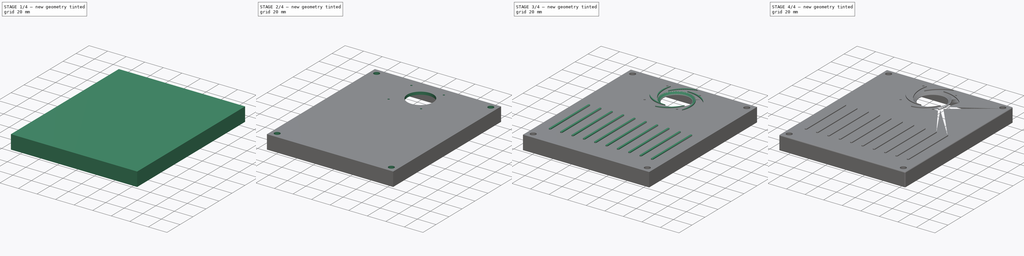
[diagram: build sequence overview — one tinted view per stage of 4, left to right]
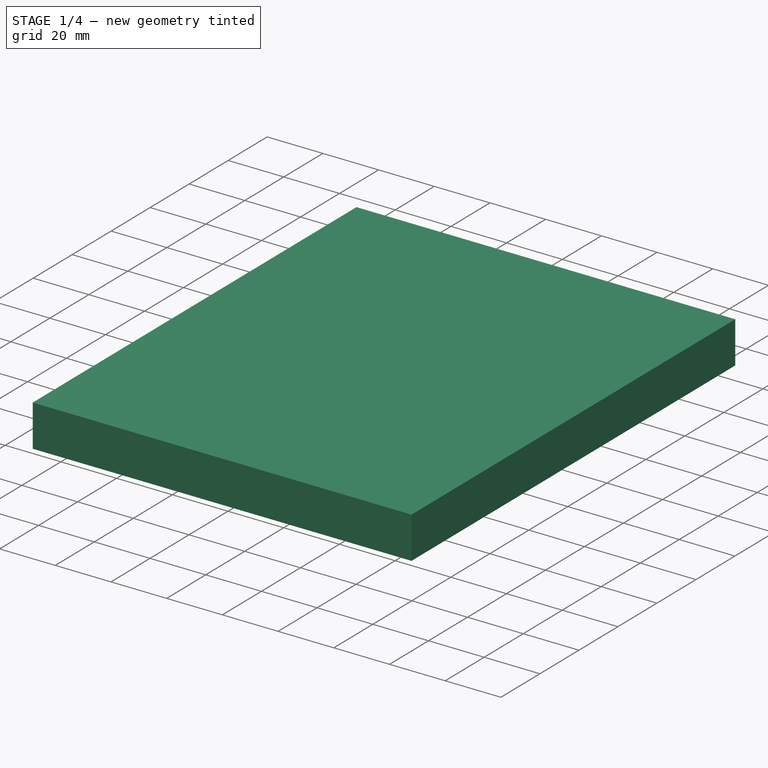
[diagram: stage 1 of 4 — iso view after this stage's code; geometry added in this stage tinted green]
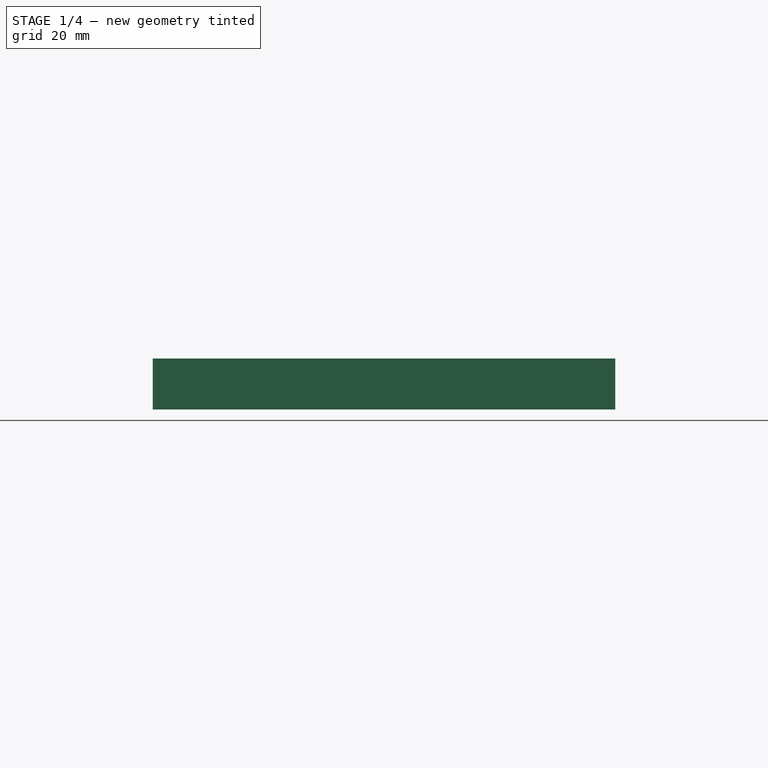
[diagram: stage 1 of 4 — front view after this stage's code; geometry added in this stage tinted green]
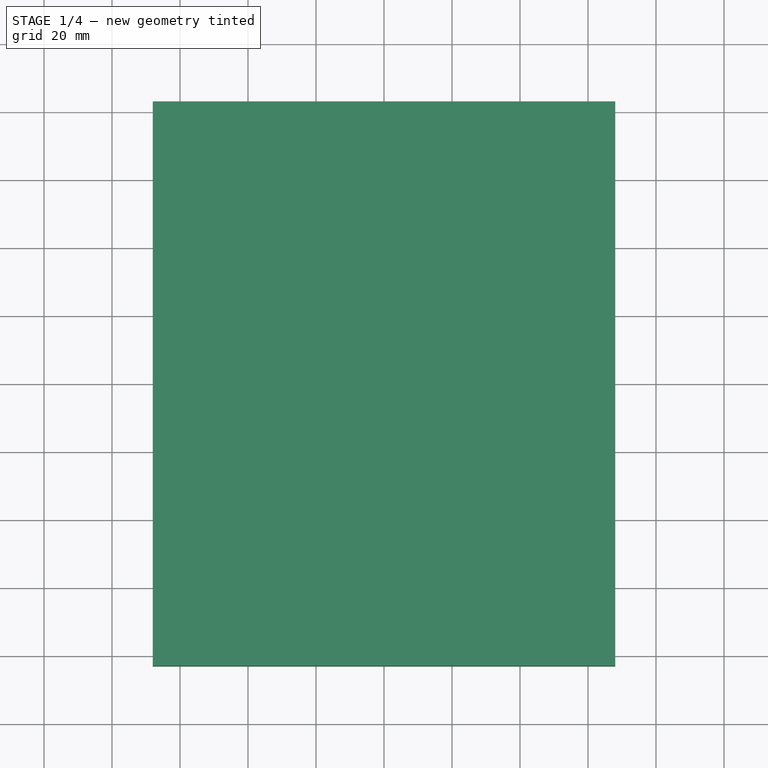
[diagram: stage 1 of 4 — top view after this stage's code; geometry added in this stage tinted green]
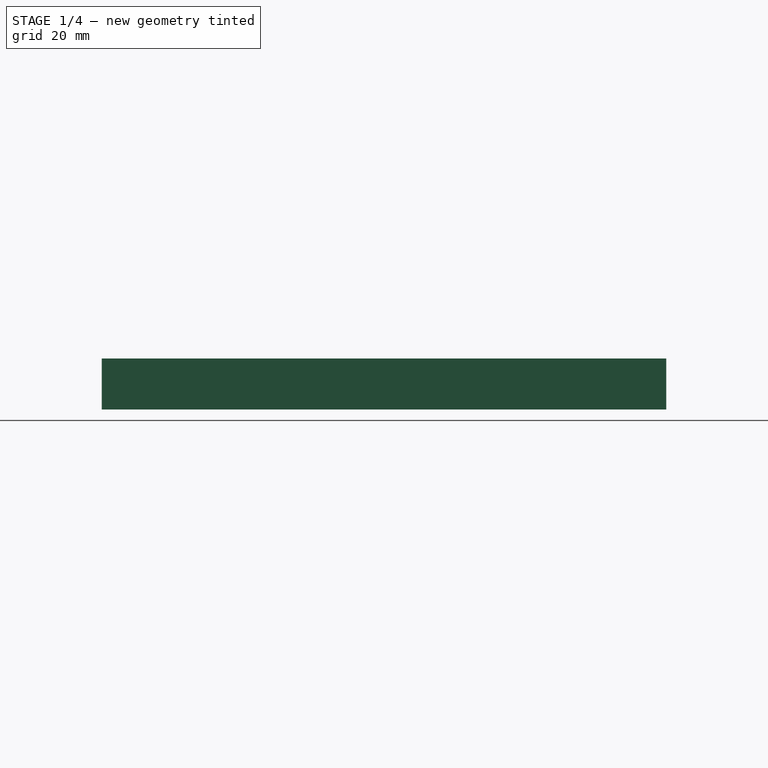
[diagram: stage 1 of 4 — right view after this stage's code; geometry added in this stage tinted green]
FCSTD DOCUMENT  (FreeCAD 0.19R24267 +99 (Git))
Label: DualRPIEnclosure_Top
License: All rights reserved
LicenseURL: http://en.wikipedia.org/wiki/All_rights_reserved
objects: Sketcher::SketchObject×10, PartDesign::Pad×5, PartDesign::Pocket×4, PartDesign::Hole×1, PartDesign::Chamfer×1, PartDesign::LinearPattern×1, PartDesign::Fillet×1, PartDesign::Body×1
note: 36 computed .brp shape members not serialized (recipe doc carries the construction recipe); baked Part::Feature solids carry a one-line shape summary decoded from their .brp

FEATURE [Sketcher::SketchObject] Sketch  label="MainWall"
  FullyConstrained = true
  MapMode = 5
  Support = -> [XY_Plane]
  sketch-geometry (4):
    g0: LineSegment StartX=-68 StartY=83 StartZ=0 EndX=68 EndY=83 EndZ=0
    g1: LineSegment StartX=68 StartY=83 StartZ=0 EndX=68 EndY=-83 EndZ=0
    g2: LineSegment StartX=68 StartY=-83 StartZ=0 EndX=-68 EndY=-83 EndZ=0
    g3: LineSegment StartX=-68 StartY=-83 StartZ=0 EndX=-68 EndY=83 EndZ=0
  constraints (11):
    c: Coincident(g0,g1)
    c: Coincident(g1,g2)
    c: Coincident(g2,g3)
    c: Coincident(g3,g0)
    c: Horizontal(g0)
    c: Horizontal(g2)
    c: Vertical(g1)
    c: Vertical(g3)
    c: DistanceX(g2,g2) = 136
    c: DistanceY(g1,g1) = 166
    c: Symmetric(g0,g1,g-1)
FEATURE [PartDesign::Pad] Pad
  Direction = (1,1,1)
  Length = 15
  Length2 = 100
  Profile = -> Sketch
  Refine = true
  Type = 0
FEATURE [Sketcher::SketchObject] Sketch001  label="MainFrame"
  FullyConstrained = true
  MapMode = 5
  Support = -> [XY_Plane]
  sketch-geometry (4):
    g0: LineSegment StartX=-65 StartY=80 StartZ=0 EndX=65 EndY=80 EndZ=0
    g1: LineSegment StartX=65 StartY=80 StartZ=0 EndX=65 EndY=-80 EndZ=0
    g2: LineSegment StartX=65 StartY=-80 StartZ=0 EndX=-65 EndY=-80 EndZ=0
    g3: LineSegment StartX=-65 StartY=-80 StartZ=0 EndX=-65 EndY=80 EndZ=0
  constraints (11):
    c: Coincident(g0,g1)
    c: Coincident(g1,g2)
    c: Coincident(g2,g3)
    c: Coincident(g3,g0)
    c: Horizontal(g0)
    c: Horizontal(g2)
    c: Vertical(g1)
    c: Vertical(g3)
    c: Symmetric(g0,g1,g-1)
    c: DistanceX(g2,g2) = 130
    c: DistanceY(g3,g3) = 160
FEATURE [PartDesign::Pocket] Pocket
  BaseFeature = -> Pad
  Length = 12
  Length2 = 100
  Profile = -> Sketch001
  Refine = true
  Reversed = true
  Type = 0
FEATURE [Sketcher::SketchObject] Sketch002  label="FlangeTop"
  ExternalGeometry = -> [Pocket]
  FullyConstrained = true
  MapMode = 5
  Placement = pos=(0,0,0) rot=(1,0,0;3.14159rad)
  Support = -> [Pocket]
  sketch-geometry (12):
    g0: ArcOfCircle CenterX=68 CenterY=83 CenterZ=0 NormalX=0 NormalY=0 NormalZ=1 AngleXU=0 Radius=13 StartAngle=3.14159 EndAngle=4.71239
    g1: LineSegment StartX=68 StartY=83 StartZ=0 EndX=55 EndY=83 EndZ=0
    g2: LineSegment StartX=68 StartY=70 StartZ=0 EndX=68 EndY=83 EndZ=0
    g3: ArcOfCircle CenterX=-68 CenterY=83 CenterZ=0 NormalX=0 NormalY=0 NormalZ=1 AngleXU=0 Radius=13 StartAngle=4.71239 EndAngle=6.28319
    g4: LineSegment StartX=-68 StartY=70 StartZ=0 EndX=-68 EndY=83 EndZ=0
    g5: LineSegment StartX=-68 StartY=83 StartZ=0 EndX=-55 EndY=83 EndZ=0
    g6: ArcOfCircle CenterX=-68 CenterY=-83 CenterZ=0 NormalX=0 NormalY=0 NormalZ=1 AngleXU=0 Radius=13 StartAngle=-9e-16 EndAngle=1.5708
    g7: LineSegment StartX=-55 StartY=-83 StartZ=0 EndX=-68 EndY=-83 EndZ=0
    g8: LineSegment StartX=-68 StartY=-83 StartZ=0 EndX=-68 EndY=-70 EndZ=0
    g9: ArcOfCircle CenterX=68 CenterY=-83 CenterZ=0 NormalX=0 NormalY=0 NormalZ=1 AngleXU=0 Radius=13 StartAngle=1.5708 EndAngle=3.14159
    g10: LineSegment StartX=55 StartY=-83 StartZ=0 EndX=68 EndY=-83 EndZ=0
    g11: LineSegment StartX=68 StartY=-70 StartZ=0 EndX=68 EndY=-83 EndZ=0
  constraints (33):
    c: Coincident(g0,g-4)
    c: PointOnObject(g0,g-3)
    c: PointOnObject(g0,g-4)
    c: Coincident(g1,g0)
    c: PointOnObject(g1,g0)
    c: Horizontal(g1)
    c: Coincident(g2,g0)
    c: Coincident(g2,g0)
    c: Radius(g0) = 13
    c: Coincident(g3,g-5)
    c: PointOnObject(g3,g-3)
    c: PointOnObject(g3,g-5)
    c: Coincident(g4,g3)
    c: Coincident(g4,g3)
    c: Coincident(g5,g3)
    c: Coincident(g5,g3)
    c: Radius(g3) = 13
    c: Coincident(g6,g-6)
    c: PointOnObject(g6,g-5)
    c: PointOnObject(g6,g-6)
    c: Coincident(g7,g6)
    c: Coincident(g7,g6)
    c: Coincident(g8,g6)
    c: Coincident(g8,g6)
    c: Radius(g6) = 13
    c: Coincident(g9,g-6)
    c: PointOnObject(g9,g-4)
    c: PointOnObject(g9,g-6)
    c: Coincident(g10,g9)
    c: Coincident(g10,g9)
    c: Coincident(g11,g9)
    c: Coincident(g11,g9)
    c: Radius(g9) = 13
FEATURE [PartDesign::Pad] Pad001  label="PadFlange"
  BaseFeature = -> Pocket
  Direction = (1,1,1)
  Length = 15
  Length2 = 100
  Profile = -> Sketch002
  Refine = true
  Reversed = true
  Type = 0
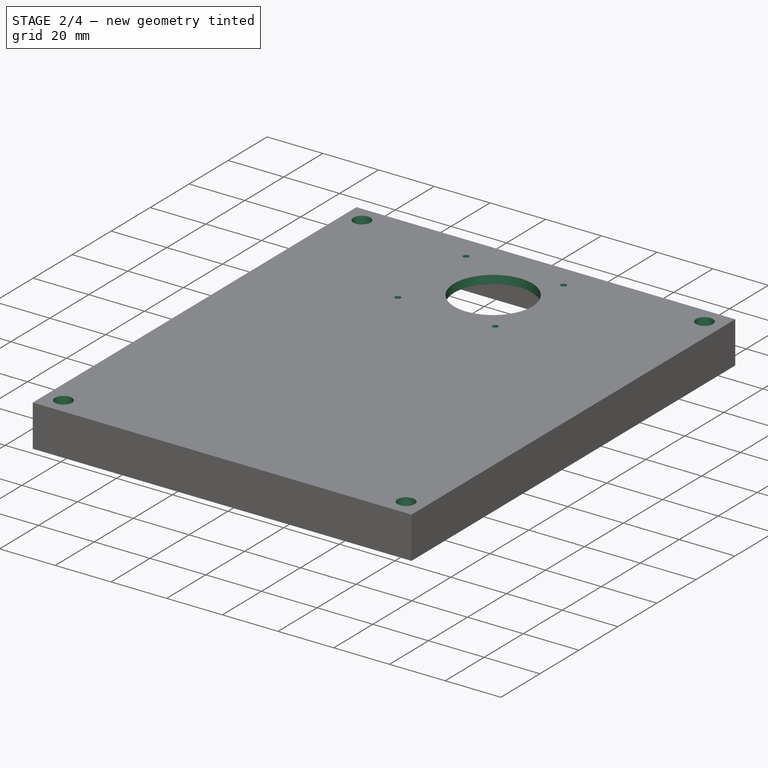
[diagram: stage 2 of 4 — iso view after this stage's code; geometry added in this stage tinted green]
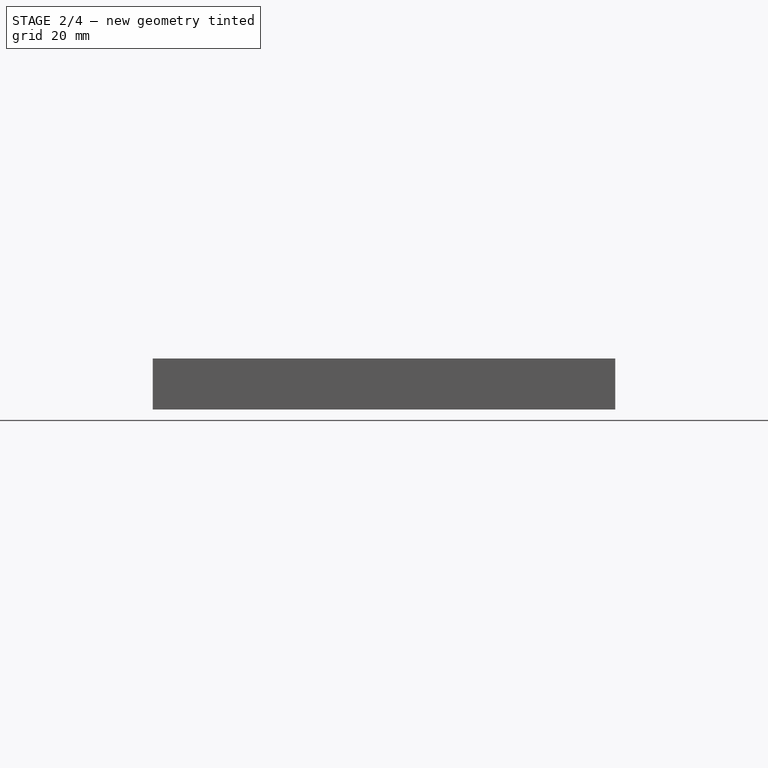
[diagram: stage 2 of 4 — front view after this stage's code; geometry added in this stage tinted green]
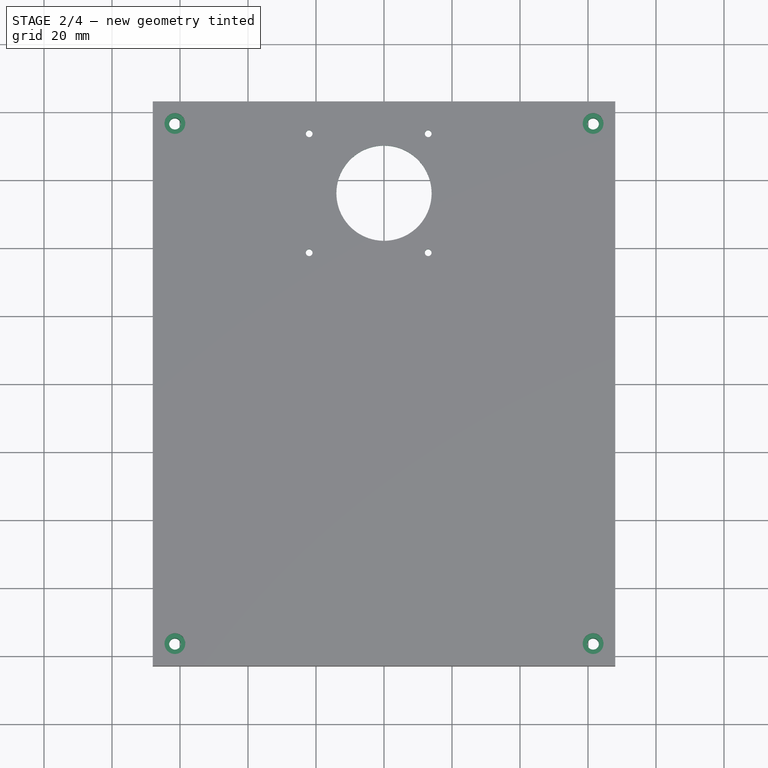
[diagram: stage 2 of 4 — top view after this stage's code; geometry added in this stage tinted green]
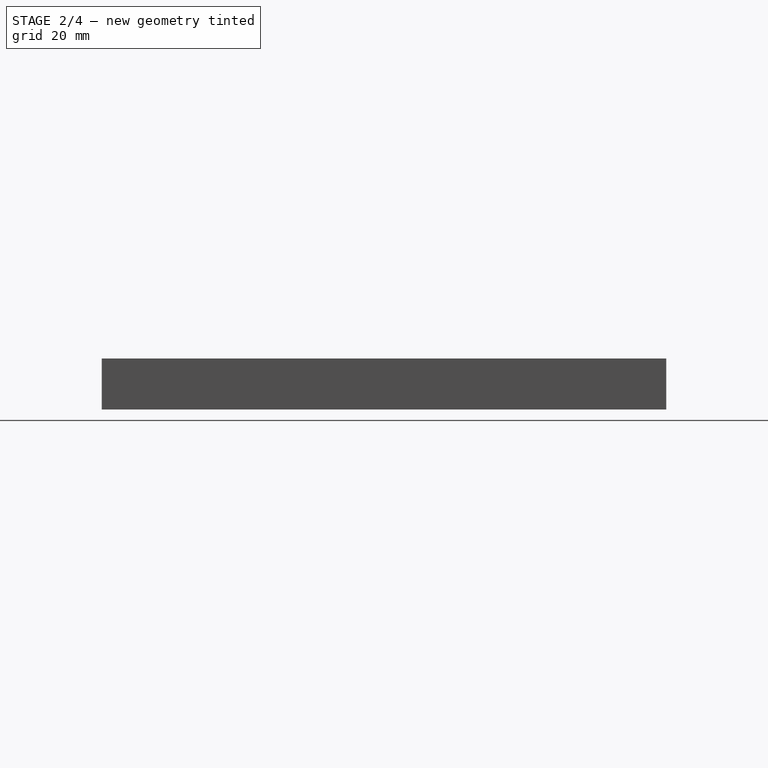
[diagram: stage 2 of 4 — right view after this stage's code; geometry added in this stage tinted green]
FEATURE [Sketcher::SketchObject] Sketch003  label="MountHole"
  ExternalGeometry = -> [Pad001]
  FullyConstrained = true
  MapMode = 5
  Placement = pos=(0,0,15) rot=(0,0,1;0rad)
  Support = -> [Pad001]
  sketch-geometry (4):
    g0: Circle CenterX=61.5 CenterY=76.5 CenterZ=0 NormalX=0 NormalY=0 NormalZ=1 AngleXU=0 Radius=1.5
    g1: Circle CenterX=-61.5 CenterY=76.5 CenterZ=0 NormalX=0 NormalY=0 NormalZ=1 AngleXU=0 Radius=1.5
    g2: Circle CenterX=-61.5 CenterY=-76.5 CenterZ=0 NormalX=0 NormalY=0 NormalZ=1 AngleXU=0 Radius=1.5
    g3: Circle CenterX=61.5 CenterY=-76.5 CenterZ=0 NormalX=0 NormalY=0 NormalZ=1 AngleXU=0 Radius=1.5
  constraints (12):
    c: DistanceX(g0,g-4) = 6.5
    c: DistanceY(g0,g-4) = 6.5
    c: Radius(g0) = 1.5
    c: DistanceX(g-5,g1) = 6.5
    c: DistanceY(g1,g-5) = 6.5
    c: Radius(g1) = 1.5
    c: DistanceX(g-6,g2) = 6.5
    c: DistanceY(g-6,g2) = 6.5
    c: Radius(g2) = 1.5
    c: DistanceX(g3,g-6) = 6.5
    c: DistanceY(g-6,g3) = 6.5
    c: Radius(g3) = 1.5
FEATURE [PartDesign::Hole] Hole
  BaseFeature = -> Pad001
  Depth = 25
  DepthType = 1
  Diameter = 3.4
  DrillForDepth = false
  DrillPoint = 1
  DrillPointAngle = 118
  HoleCutCountersinkAngle = 90
  HoleCutCustomValues = false
  HoleCutDepth = 3.4
  HoleCutDiameter = 6.1
  HoleCutType = 1
  ModelActualThread = false
  Profile = -> Sketch003
  Tapered = false
  TaperedAngle = 90
  ThreadAngle = 60
  ThreadClass = 0
  ThreadCutOffInner = 0.0541266
  ThreadCutOffOuter = 0.108253
  ThreadDirection = 0
  ThreadFit = 0
  ThreadPitch = 0.5
  ThreadSize = 9
  ThreadType = 1
  Threaded = false
FEATURE [Sketcher::SketchObject] Sketch004  label="FanMount"
  ExternalGeometry = -> [Hole]
  FullyConstrained = true
  MapMode = 5
  Placement = pos=(0,0,12) rot=(1,0,0;3.14159rad)
  Support = -> [Hole]
  sketch-geometry (14):
    g0: Circle CenterX=0 CenterY=-56 CenterZ=0 NormalX=0 NormalY=0 NormalZ=1 AngleXU=0 Radius=14
    g1: LineSegment StartX=-24.5 StartY=-36 StartZ=0 EndX=15.5 EndY=-36 EndZ=0
    g2: LineSegment StartX=15.5 StartY=-36 StartZ=0 EndX=15.5 EndY=-76 EndZ=0
    g3: LineSegment StartX=15.5 StartY=-76 StartZ=0 EndX=-24.5 EndY=-76 EndZ=0
    g4: LineSegment StartX=-24.5 StartY=-76 StartZ=0 EndX=-24.5 EndY=-36 EndZ=0
    g5: GeomPoint X=15.5 Y=-56 Z=0
    g6: GeomPoint X=-22 Y=-38.5 Z=0
    g7: GeomPoint X=13 Y=-38.5 Z=0
    g8: GeomPoint X=13 Y=-73.5 Z=0
    g9: GeomPoint X=-22 Y=-73.5 Z=0
    g10: Circle CenterX=13 CenterY=-38.5 CenterZ=0 NormalX=0 NormalY=0 NormalZ=1 AngleXU=0 Radius=1
    g11: Circle CenterX=-22 CenterY=-38.5 CenterZ=0 NormalX=0 NormalY=0 NormalZ=1 AngleXU=0 Radius=1
    g12: Circle CenterX=-22 CenterY=-73.5 CenterZ=0 NormalX=0 NormalY=0 NormalZ=1 AngleXU=0 Radius=1
    g13: Circle CenterX=13 CenterY=-73.5 CenterZ=0 NormalX=0 NormalY=0 NormalZ=1 AngleXU=0 Radius=1
  constraints (32):
    c: PointOnObject(g0,g-2)
    c: Radius(g0) = 14
    c: DistanceY(g-4,g0) = 24
    c: Coincident(g1,g2)
    c: Coincident(g2,g3)
    c: Coincident(g3,g4)
    c: Coincident(g4,g1)
    c: Horizontal(g1)
    c: Horizontal(g3)
    c: Vertical(g2)
    c: Vertical(g4)
    c: DistanceX(g1,g1) = 40
    c: DistanceY(g4,g4) = 40
    c: Symmetric(g1,g2,g5)
    c: DistanceX(g0,g5) = 15.5
    c: DistanceX(g6,g7) = 35
    c: DistanceY(g9,g6) = 35
    c: Horizontal(g6,g7)
    c: Horizontal(g9,g8)
    c: Vertical(g7,g8)
    c: DistanceX(g7,g1) = 2.5
    c: DistanceY(g7,g1) = 2.5
    c: Horizontal(g5,g0)
    c: DistanceX(g9,g8) = 35
    c: Coincident(g10,g7)
    c: Coincident(g11,g6)
    c: Coincident(g12,g9)
    c: Coincident(g13,g8)
    c: Radius(g10) = 1
    c: Radius(g11) = 1
    c: Radius(g13) = 1
    c: Radius(g12) = 1
FEATURE [PartDesign::Pocket] Pocket001  label="PocketFanMount"
  BaseFeature = -> Hole
  Length = 5
  Length2 = 100
  Profile = -> Sketch004
  Type = 1
FEATURE [Sketcher::SketchObject] Sketch005  label="FanHole"
  ExternalGeometry = -> [Pocket001]
  FullyConstrained = true
  MapMode = 5
  Placement = pos=(0,0,15) rot=(0,0,1;0rad)
  Support = -> [Pocket001]
  sketch-geometry (2):
    g0: Circle CenterX=0 CenterY=56 CenterZ=0 NormalX=0 NormalY=0 NormalZ=1 AngleXU=0 Radius=14
    g1: GeomPoint X=13 Y=56 Z=0
  constraints (4):
    c: PointOnObject(g0,g-2)
    c: Radius(g0) = 14
    c: Symmetric(g-3,g-6,g1)
    c: Horizontal(g1,g0)
FEATURE [PartDesign::Pocket] Pocket002  label="FanHole001"
  BaseFeature = -> Pocket001
  Length = 5
  Length2 = 100
  Profile = -> Sketch005
  Type = 1
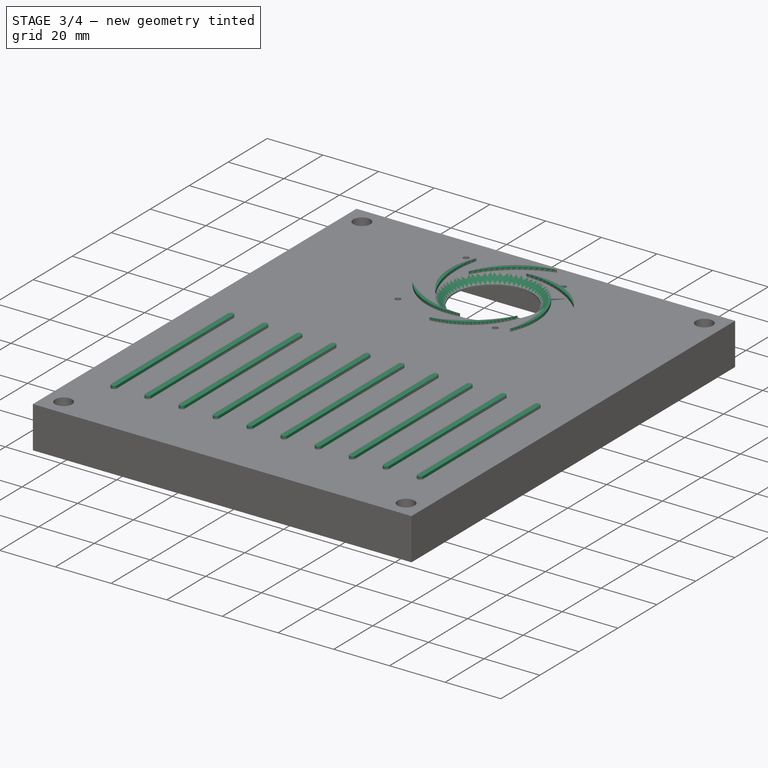
[diagram: stage 3 of 4 — iso view after this stage's code; geometry added in this stage tinted green]
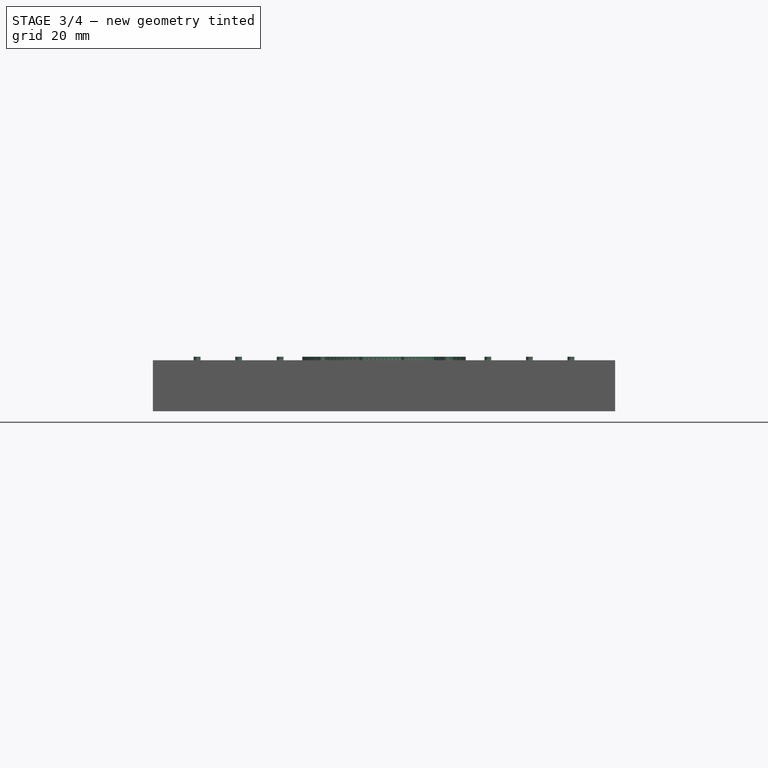
[diagram: stage 3 of 4 — front view after this stage's code; geometry added in this stage tinted green]
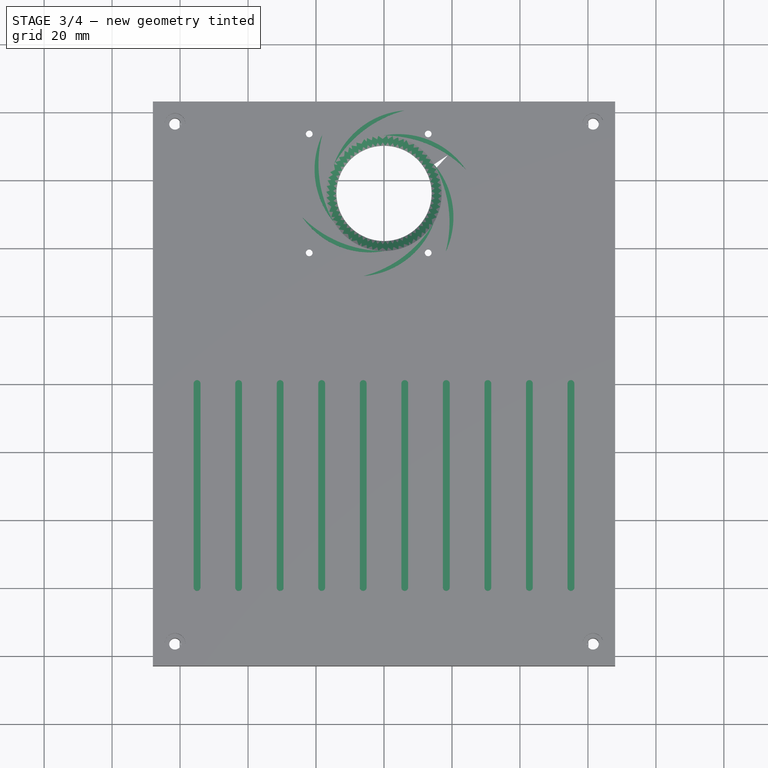
[diagram: stage 3 of 4 — top view after this stage's code; geometry added in this stage tinted green]
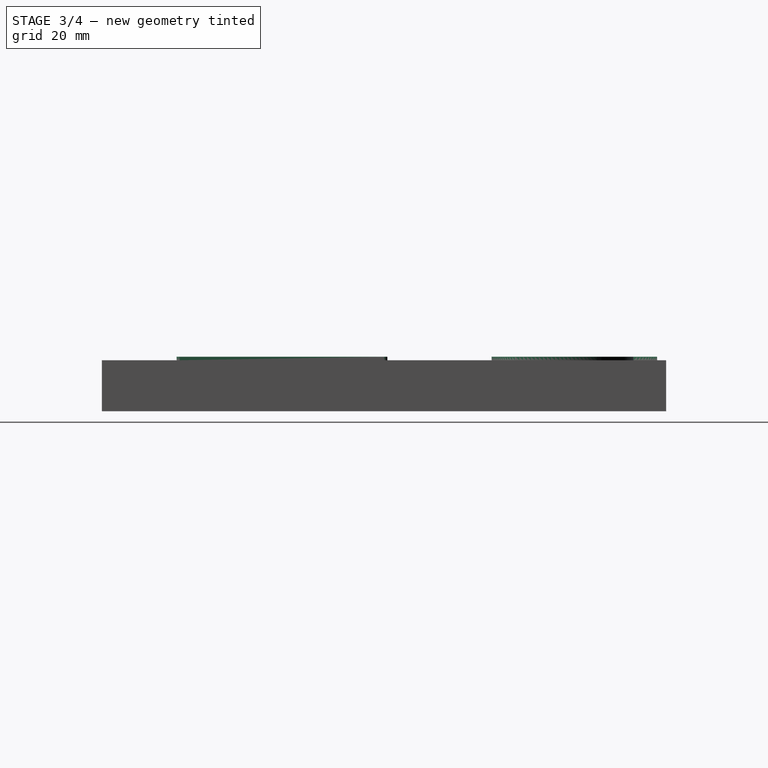
[diagram: stage 3 of 4 — right view after this stage's code; geometry added in this stage tinted green]
FEATURE [PartDesign::Chamfer] Chamfer
  Angle = 40
  Base = -> Pocket002 [Edge16]
  BaseFeature = -> Pocket002
  ChamferType = 2
  FlipDirection = false
  Size = 3
  Size2 = 1
  SupportTransform = false
FEATURE [Sketcher::SketchObject] Sketch006  label="WindClearancePad"
  ExternalGeometry = -> [Chamfer]
  FullyConstrained = true
  MapMode = 5
  Placement = pos=(0,0,15) rot=(0,0,1;0rad)
  Support = -> [Chamfer]
  sketch-geometry (4):
    g0: ArcOfCircle CenterX=-55 CenterY=0 CenterZ=0 NormalX=0 NormalY=0 NormalZ=1 AngleXU=0 Radius=1 StartAngle=-7.02e-14 EndAngle=3.14159
    g1: ArcOfCircle CenterX=-55 CenterY=-60 CenterZ=0 NormalX=0 NormalY=0 NormalZ=1 AngleXU=0 Radius=1 StartAngle=3.14159 EndAngle=6.28319
    g2: LineSegment StartX=-56 StartY=-2.4288e-11 StartZ=0 EndX=-56 EndY=-60 EndZ=0
    g3: LineSegment StartX=-54 StartY=-7.02e-14 StartZ=0 EndX=-54 EndY=-60 EndZ=0
  constraints (11):
    c: Tangent(g0,g3) = 1.5708
    c: Tangent(g0,g2) = -1.5708
    c: Tangent(g2,g1) = -1.5708
    c: Tangent(g3,g1) = 1.5708
    c: Vertical(g2)
    c: Equal(g0,g1)
    c: Radius(g0) = 1
    c: DistanceY(g2,g2) = 60
    c: DistanceX(g-3,g-3) = 136
    c: PointOnObject(g0,g-1)
    c: DistanceX(g-6,g0) = 13
FEATURE [PartDesign::Pad] Pad002  label="WindClearingPad"
  BaseFeature = -> Chamfer
  Direction = (1,1,1)
  Length = 1
  Length2 = 100
  Profile = -> Sketch006
  Type = 0
FEATURE [PartDesign::LinearPattern] LinearPattern
  BaseFeature = -> Pad002
  Direction = -> Sketch006 [H_Axis]
  Length = 110
  Occurrences = 10
  Originals = -> [Pad002]
FEATURE [Sketcher::SketchObject] Sketch007  label="windguide"
  ExternalGeometry = -> [LinearPattern]
  FullyConstrained = true
  MapMode = 5
  Placement = pos=(0,0,15) rot=(0,0,1;0rad)
  Support = -> [LinearPattern]
  sketch-geometry (20):
    g0: LineSegment StartX=14.7224 StartY=64.5 StartZ=0 EndX=-14.7224 EndY=64.5 EndZ=0
    g1: LineSegment StartX=-14.7224 StartY=64.5 StartZ=0 EndX=5.3e-15 EndY=39 EndZ=0
    g2: LineSegment StartX=6.2e-15 StartY=39 StartZ=0 EndX=14.7224 EndY=64.5 EndZ=0
    g3: Circle CenterX=0 CenterY=56 CenterZ=0 NormalX=0 NormalY=0 NormalZ=1 AngleXU=0 Radius=17
    g4: LineSegment StartX=8.3e-15 StartY=73 StartZ=0 EndX=-14.7224 EndY=47.5 EndZ=0
    g5: LineSegment StartX=-14.7224 StartY=47.5 StartZ=0 EndX=14.7224 EndY=47.5 EndZ=0
    g6: LineSegment StartX=14.7224 StartY=47.5 StartZ=0 EndX=8.9e-15 EndY=73 EndZ=0
    g7: Circle CenterX=0 CenterY=56 CenterZ=0 NormalX=0 NormalY=0 NormalZ=1 AngleXU=0 Radius=17
    g8: ArcOfCircle CenterX=6.2e-15 CenterY=39 CenterZ=0 NormalX=0 NormalY=0 NormalZ=1 AngleXU=0 Radius=34 StartAngle=0.785398 EndAngle=1.5708
    g9: ArcOfCircle CenterX=14.7224 CenterY=64.5 CenterZ=0 NormalX=0 NormalY=0 NormalZ=1 AngleXU=0 Radius=34 StartAngle=2.87979 EndAngle=3.66519
    g10: ArcOfCircle CenterX=-14.7224 CenterY=64.5 CenterZ=0 NormalX=0 NormalY=0 NormalZ=1 AngleXU=0 Radius=34 StartAngle=4.97419 EndAngle=5.75959
    g11: ArcOfCircle CenterX=4.30324 CenterY=49.3889 CenterZ=0 NormalX=0 NormalY=0 NormalZ=1 AngleXU=0 Radius=24 StartAngle=0.605122 EndAngle=1.75107
    g12: ArcOfCircle CenterX=3.57373 CenterY=63.0322 CenterZ=0 NormalX=0 NormalY=0 NormalZ=1 AngleXU=0 Radius=24 StartAngle=2.69952 EndAngle=3.84547
    g13: ArcOfCircle CenterX=-7.87697 CenterY=55.5788 CenterZ=0 NormalX=0 NormalY=0 NormalZ=1 AngleXU=0 Radius=24 StartAngle=4.79391 EndAngle=5.93986
    g14: ArcOfCircle CenterX=14.7224 CenterY=47.5 CenterZ=0 NormalX=0 NormalY=0 NormalZ=1 AngleXU=0 Radius=34 StartAngle=1.8326 EndAngle=2.61799
    g15: ArcOfCircle CenterX=8.3e-15 CenterY=73 CenterZ=0 NormalX=0 NormalY=0 NormalZ=1 AngleXU=0 Radius=34 StartAngle=3.92699 EndAngle=4.71239
    g16: ArcOfCircle CenterX=-14.7224 CenterY=47.5 CenterZ=0 NormalX=0 NormalY=0 NormalZ=1 AngleXU=0 Radius=34 StartAngle=6.02139 EndAngle=6.80678
    g17: ArcOfCircle CenterX=7.87697 CenterY=56.4212 CenterZ=0 NormalX=0 NormalY=0 NormalZ=1 AngleXU=0 Radius=24 StartAngle=1.65232 EndAngle=2.79827
    g18: ArcOfCircle CenterX=-3.57373 CenterY=48.9678 CenterZ=0 NormalX=0 NormalY=0 NormalZ=1 AngleXU=0 Radius=24 StartAngle=5.84111 EndAngle=6.98706
    g19: ArcOfCircle CenterX=-4.30324 CenterY=62.6111 CenterZ=0 NormalX=0 NormalY=0 NormalZ=1 AngleXU=0 Radius=24 StartAngle=3.74671 EndAngle=4.89267
  constraints (58):
    c: Coincident(g0,g1)
    c: Coincident(g1,g2)
    c: Coincident(g2,g0)
    c: Equal(g0,g1)
    c: Equal(g0,g2)
    c: PointOnObject(g0,g3)
    c: PointOnObject(g1,g3)
    c: PointOnObject(g2,g3)
    c: Coincident(g3,g-3)
    c: PointOnObject(g2,g-3)
    c: PointOnObject(g1,g-2)
    c: Coincident(g4,g5)
    c: Coincident(g5,g6)
    c: Coincident(g6,g4)
    c: Equal(g4,g5)
    c: Equal(g4,g6)
    c: PointOnObject(g4,g7)
    c: PointOnObject(g5,g7)
    c: PointOnObject(g6,g7)
    c: Coincident(g7,g3)
    c: PointOnObject(g6,g3)
    c: PointOnObject(g4,g-2)
    c: Coincident(g8,g1)
    c: Coincident(g8,g4)
    c: Coincident(g9,g0)
    c: Coincident(g9,g4)
    c: Coincident(g10,g0)
    c: Coincident(g10,g5)
    c: Angle(g9) = 0.785398
    c: Angle(g8) = 0.785398
    c: Angle(g10) = 0.785398
    c: Coincident(g11,g8)
    c: Coincident(g11,g8)
    c: Radius(g11) = 24
    c: Coincident(g12,g9)
    c: Coincident(g12,g9)
    c: Radius(g12) = 24
    c: Coincident(g13,g10)
    c: Coincident(g13,g10)
    c: Radius(g13) = 24
    c: Coincident(g14,g10)
    c: Coincident(g14,g10)
    c: Angle(g14) = 0.785398
    c: Coincident(g15,g8)
    c: Coincident(g15,g8)
    c: Angle(g15) = 0.785398
    c: Coincident(g16,g9)
    c: Coincident(g16,g9)
    c: Angle(g16) = 0.785398
    c: Coincident(g17,g10)
    c: Coincident(g17,g14)
    c: Coincident(g18,g16)
    c: Coincident(g18,g9)
    c: Coincident(g19,g8)
    c: Coincident(g19,g15)
    c: Radius(g17) = 24
    c: Radius(g18) = 24
    c: Radius(g19) = 24
FEATURE [PartDesign::Pad] Pad003  label="PadWindGuide"
  BaseFeature = -> LinearPattern
  Direction = (1,1,1)
  Length = 1
  Length2 = 100
  Profile = -> Sketch007
  Type = 0
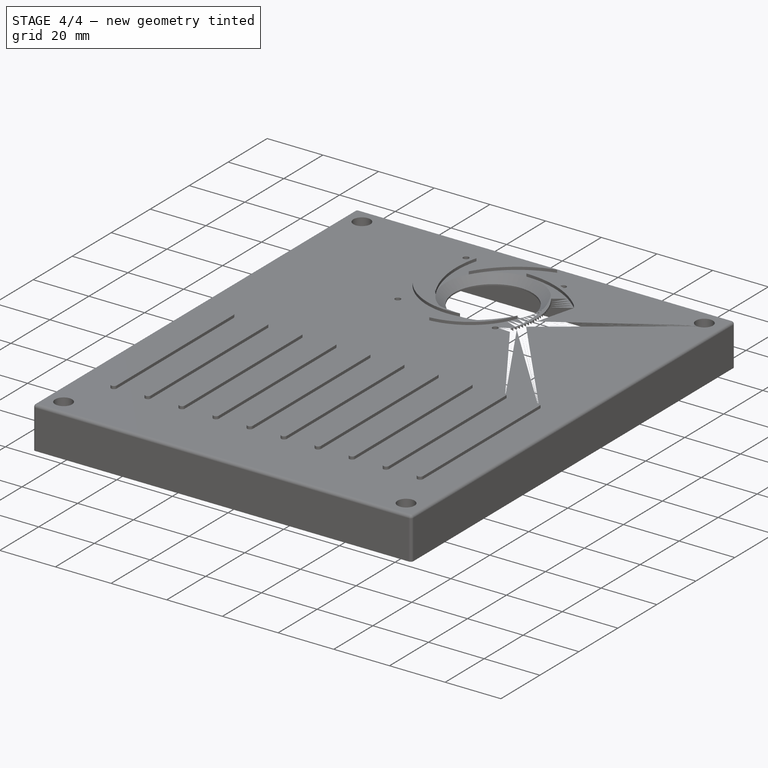
[diagram: stage 4 of 4 — iso view after this stage's code; geometry added in this stage tinted green]
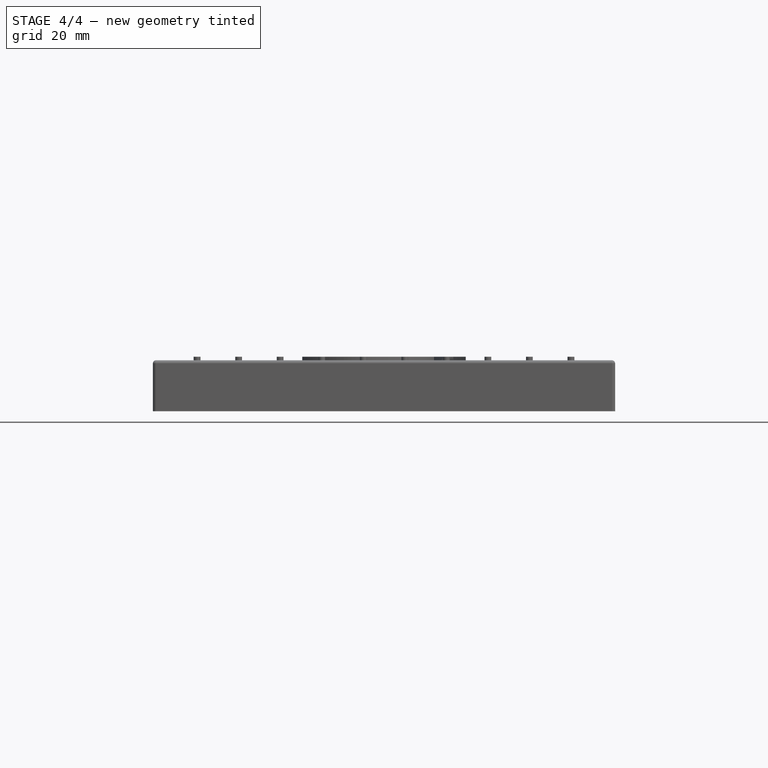
[diagram: stage 4 of 4 — front view after this stage's code; geometry added in this stage tinted green]
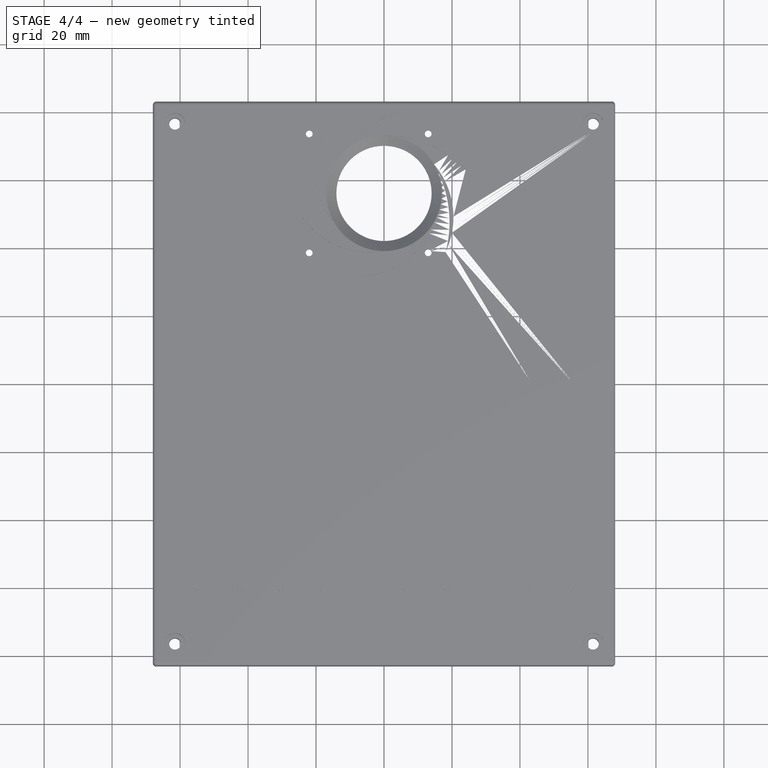
[diagram: stage 4 of 4 — top view after this stage's code; geometry added in this stage tinted green]
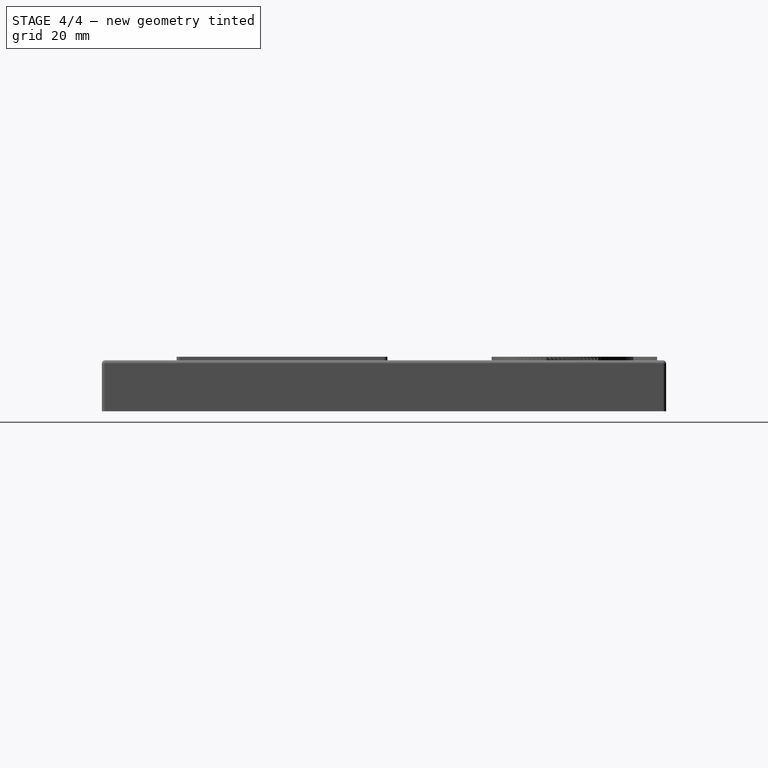
[diagram: stage 4 of 4 — right view after this stage's code; geometry added in this stage tinted green]
FEATURE [Sketcher::SketchObject] Sketch008  label="WindGuide"
  ExternalGeometry = -> [Pad003]
  FullyConstrained = true
  MapMode = 5
  Placement = pos=(-65,0,0) rot=(0.57735,0.57735,0.57735;2.0944rad)
  Support = -> [Pad003]
  sketch-geometry (4):
    g0: GeomPoint X=32.5 Y=12 Z=0
    g1: LineSegment StartX=-7.1e-15 StartY=-7.1e-15 StartZ=0 EndX=-7.1e-15 EndY=12 EndZ=0
    g2: ArcOfCircle CenterX=32.5 CenterY=-38.0104 CenterZ=0 NormalX=0 NormalY=0 NormalZ=1 AngleXU=0 Radius=50.0104 StartAngle=1.5708 EndAngle=2.2782
    g3: LineSegment StartX=-7.1e-15 StartY=12 StartZ=0 EndX=32.5 EndY=12 EndZ=0
  constraints (10):
    c: PointOnObject(g0,g-3)
    c: DistanceX(g0,g-6) = 5
    c: Coincident(g1,g-1)
    c: PointOnObject(g1,g-3)
    c: Vertical(g1)
    c: Coincident(g2,g0)
    c: Coincident(g2,g1)
    c: Tangent(g2,g-3)
    c: Coincident(g3,g1)
    c: Coincident(g3,g2)
FEATURE [PartDesign::Pad] Pad004  label="PadWindGUide"
  BaseFeature = -> Pad003
  Direction = (1,1,1)
  Length = 10
  Length2 = 100
  Profile = -> Sketch008
  Type = 2
FEATURE [Sketcher::SketchObject] Sketch009  label="BottomMating"
  ExternalGeometry = -> [Pad004]
  FullyConstrained = true
  MapMode = 5
  Placement = pos=(0,0,0) rot=(1,0,0;3.14159rad)
  Support = -> [Pad004]
  sketch-geometry (8):
    g0: LineSegment StartX=-67 StartY=82 StartZ=0 EndX=67 EndY=82 EndZ=0
    g1: LineSegment StartX=67 StartY=82 StartZ=0 EndX=67 EndY=-82 EndZ=0
    g2: LineSegment StartX=67 StartY=-82 StartZ=0 EndX=-67 EndY=-82 EndZ=0
    g3: LineSegment StartX=-67 StartY=-82 StartZ=0 EndX=-67 EndY=82 EndZ=0
    g4: LineSegment StartX=-66 StartY=81 StartZ=0 EndX=66 EndY=81 EndZ=0
    g5: LineSegment StartX=66 StartY=81 StartZ=0 EndX=66 EndY=-81 EndZ=0
    g6: LineSegment StartX=66 StartY=-81 StartZ=0 EndX=-66 EndY=-81 EndZ=0
    g7: LineSegment StartX=-66 StartY=-81 StartZ=0 EndX=-66 EndY=81 EndZ=0
  constraints (28):
    c: Coincident(g0,g1)
    c: Coincident(g1,g2)
    c: Coincident(g2,g3)
    c: Coincident(g3,g0)
    c: Horizontal(g0)
    c: Horizontal(g2)
    c: Vertical(g1)
    c: Vertical(g3)
    c: Coincident(g4,g5)
    c: Coincident(g5,g6)
    c: Coincident(g6,g7)
    c: Coincident(g7,g4)
    c: Horizontal(g4)
    c: Horizontal(g6)
    c: Vertical(g5)
    c: Vertical(g7)
    c: DistanceX(g0,g-3) = 1
    c: DistanceY(g0,g-3) = 1
    c: DistanceX(g4,g0) = 1
    c: DistanceY(g4,g0) = 1
    c: DistanceX(g-3,g0) = 1
    c: DistanceX(g0,g4) = 1
    c: DistanceY(g-6,g2) = 1
    c: DistanceY(g2,g6) = 1
    c: DistanceX(g5,g1) = 1
    c: DistanceY(g1,g5) = 1
    c: DistanceY(g-6,g1) = 1
    c: DistanceX(g1,g-6) = 1
FEATURE [PartDesign::Pocket] Pocket003  label="PocketBottomMating"
  BaseFeature = -> Pad004
  Length = 1.8
  Length2 = 100
  Profile = -> Sketch009
  Type = 0
FEATURE [PartDesign::Fillet] Fillet
  Base = -> Pocket003 [Edge74,Edge73,Edge76,Edge77,Edge4,Edge3,Edge1,Edge2]
  BaseFeature = -> Pocket003
  Radius = 1
  SupportTransform = false
FEATURE [PartDesign::Body] Body
  Group = -> [Sketch,Pad,Sketch001,Pocket,Sketch002,Pad001,Sketch003,Hole,Sketch004,Pocket001,Sketch005,Pocket002,Chamfer,Sketch006,Pad002,LinearPattern,Sketch007,Pad003,Sketch008,Pad004,Sketch009,Pocket003,Fillet]
  Origin = -> Origin
  Tip = -> Fillet
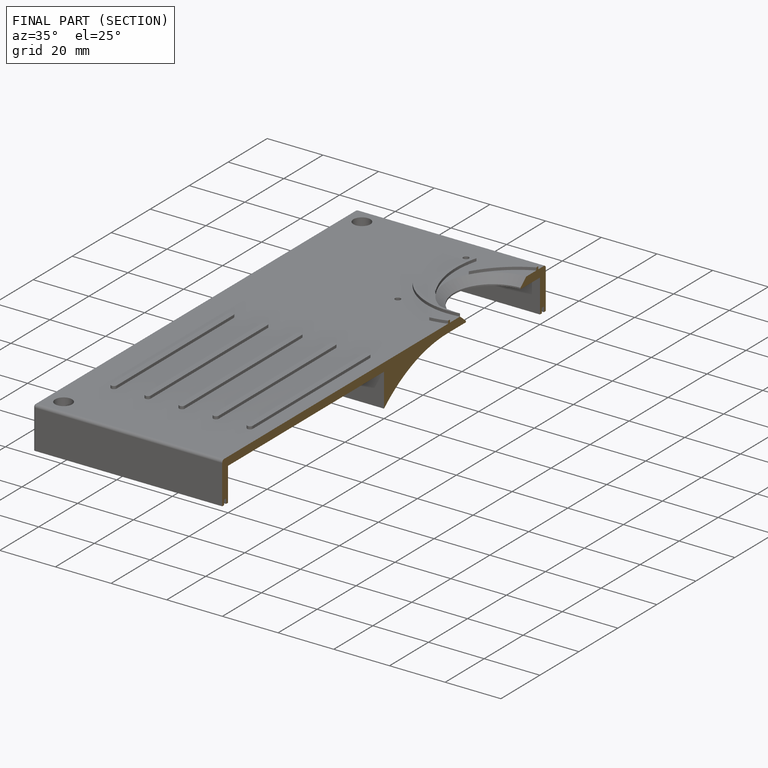
[diagram: finished part — half-section view (interior)]
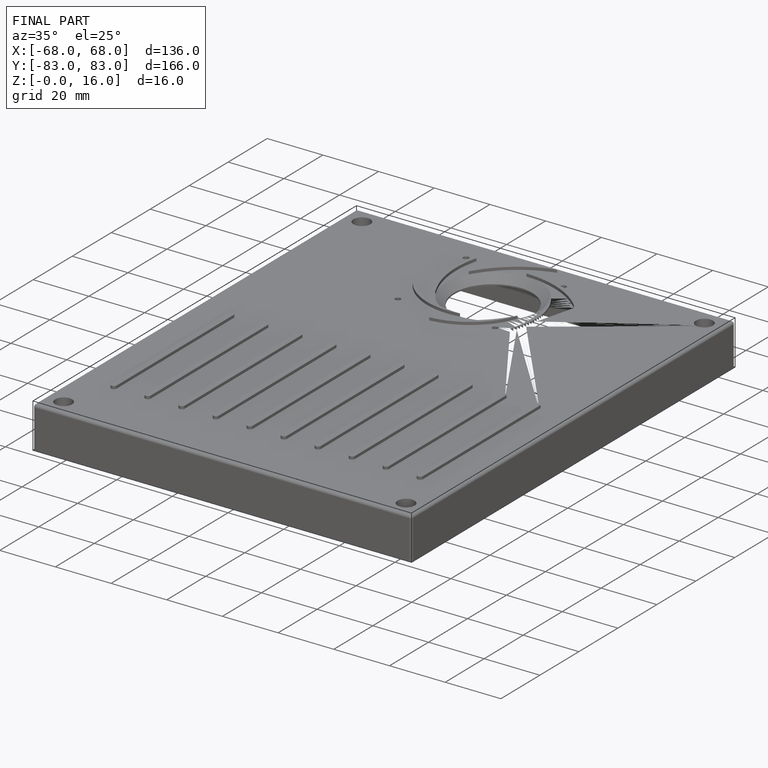
[diagram: finished part — iso view with bounding-box wireframe]
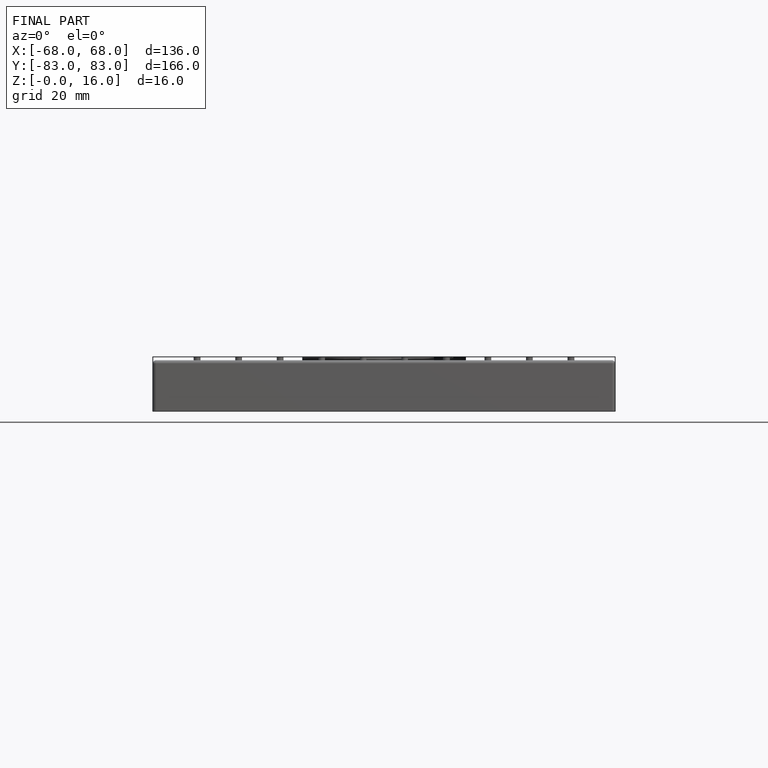
[diagram: finished part — front view with bounding-box wireframe]
